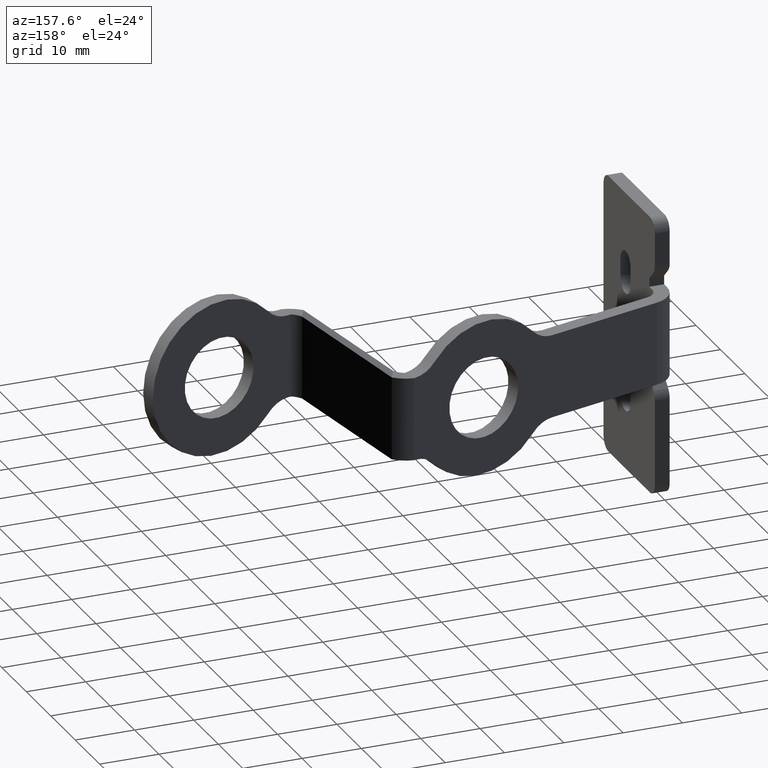
[diagram: clean part render]
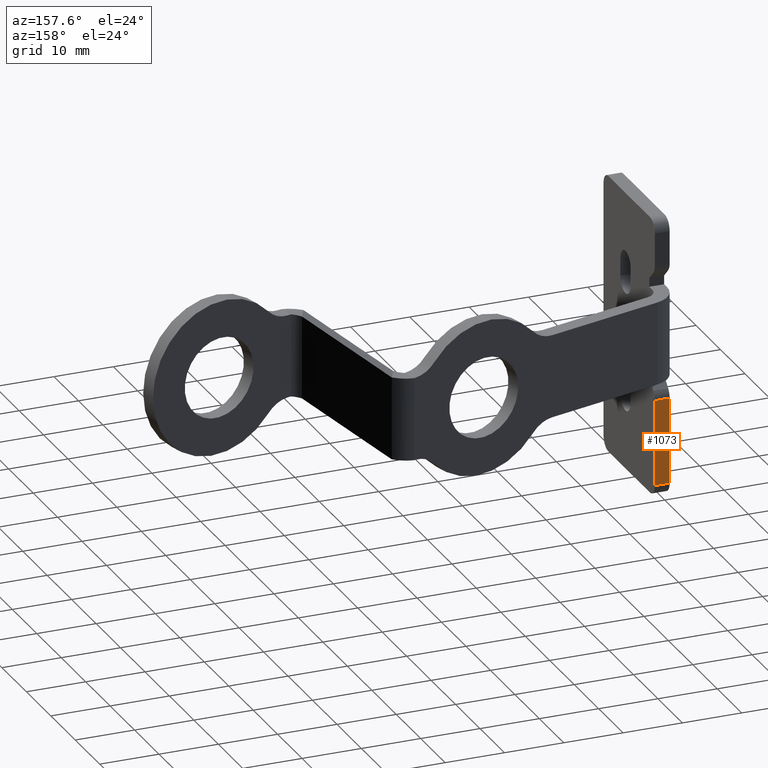
[diagram: same view with one face highlighted and labeled with its STEP entity id]
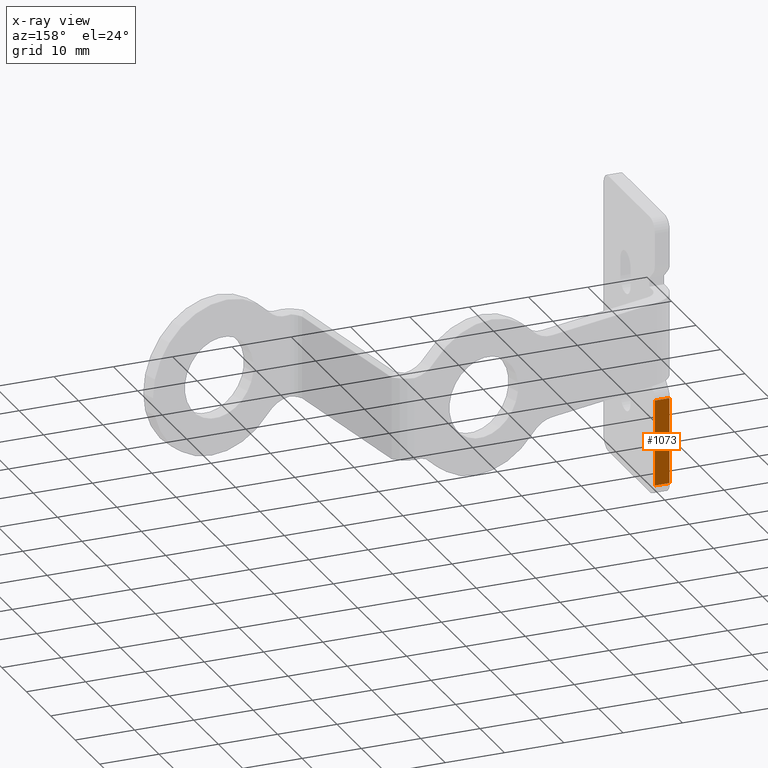
[diagram: x-ray of the same camera — body ghosted, the highlighted face saturated]
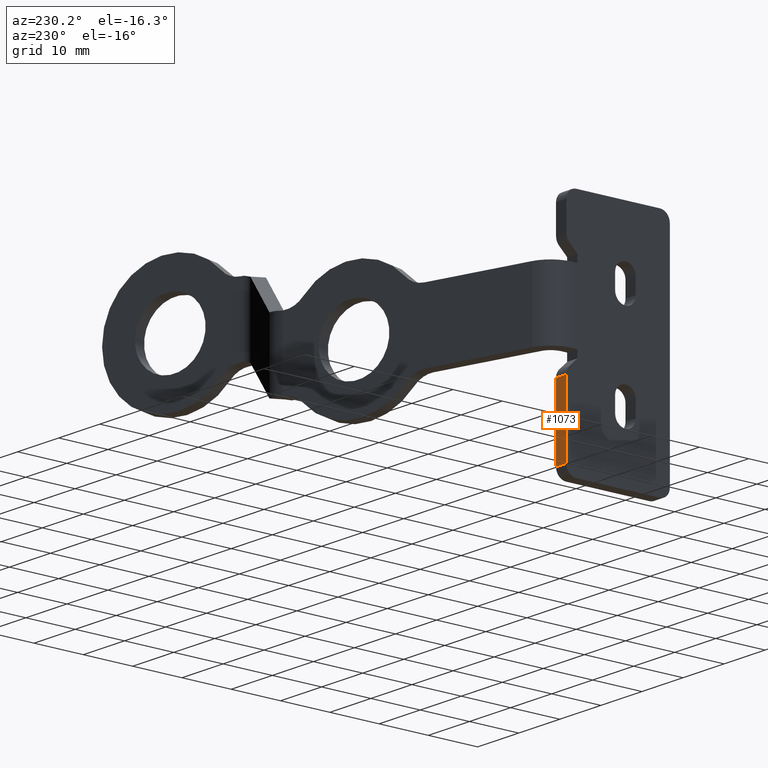
[diagram: same view with one face highlighted and labeled with its STEP entity id]
A machine part, auxiliary view. The second image highlights one B-rep face of the part: STEP entity #1073.
The next image is the same camera in x-ray: the body ghosted, the highlighted face saturated — about 0% of this face is hidden behind the body in this view.
A second angle (auxiliary view) of the same face is appended — the face is thin or edge-on in the first view.
In plain terms, the highlighted planar face has unit normal (0, 1, 0).
Its self-contained STEP definition (entity closure, byte-faithful):
#118=FACE_OUTER_BOUND('',#182,.T.);
#182=EDGE_LOOP('',(#774,#775,#776,#777));
#252=LINE('',#1594,#358);
#253=LINE('',#1598,#359);
#272=LINE('',#1654,#378);
#273=LINE('',#1656,#379);
#358=VECTOR('',#1273,10.);
#359=VECTOR('',#1278,10.);
#378=VECTOR('',#1325,10.);
#379=VECTOR('',#1328,10.);
#464=VERTEX_POINT('',#1591);
#465=VERTEX_POINT('',#1593);
#466=VERTEX_POINT('',#1597);
#489=VERTEX_POINT('',#1652);
#567=EDGE_CURVE('',#464,#465,#252,.T.);
#569=EDGE_CURVE('',#465,#466,#253,.T.);
#598=EDGE_CURVE('',#466,#489,#272,.T.);
#599=EDGE_CURVE('',#489,#464,#273,.T.);
#774=ORIENTED_EDGE('',*,*,#567,.F.);
#775=ORIENTED_EDGE('',*,*,#599,.F.);
#776=ORIENTED_EDGE('',*,*,#598,.F.);
#777=ORIENTED_EDGE('',*,*,#569,.F.);
#1038=PLANE('',#1163);
#1073=ADVANCED_FACE('',(#118),#1038,.T.);
#1163=AXIS2_PLACEMENT_3D('',#1655,#1326,#1327);
#1273=DIRECTION('',(-1.,0.,0.));
#1278=DIRECTION('',(0.,0.,-1.));
#1325=DIRECTION('',(1.,0.,0.));
#1326=DIRECTION('center_axis',(0.,1.,0.));
#1327=DIRECTION('ref_axis',(0.,0.,1.));
#1328=DIRECTION('',(0.,0.,1.));
#1591=CARTESIAN_POINT('',(2.5,12.,3.));
#1593=CARTESIAN_POINT('',(0.,12.,3.));
#1594=CARTESIAN_POINT('',(1.25,12.,3.));
#1597=CARTESIAN_POINT('',(0.,12.,-11.5));
#1598=CARTESIAN_POINT('',(0.,12.,33.5));
#1652=CARTESIAN_POINT('',(2.5,12.,-11.5));
#1654=CARTESIAN_POINT('',(0.,12.,-11.5));
#1655=CARTESIAN_POINT('Origin',(0.,12.,-13.5));
#1656=CARTESIAN_POINT('',(2.5,12.,33.5));